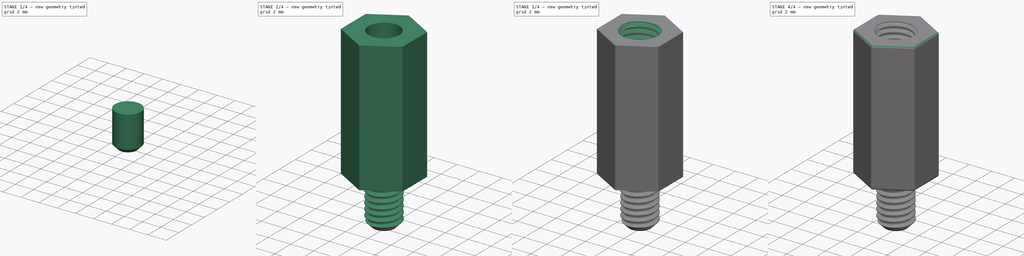
[diagram: build sequence overview — one tinted view per stage of 4, left to right]
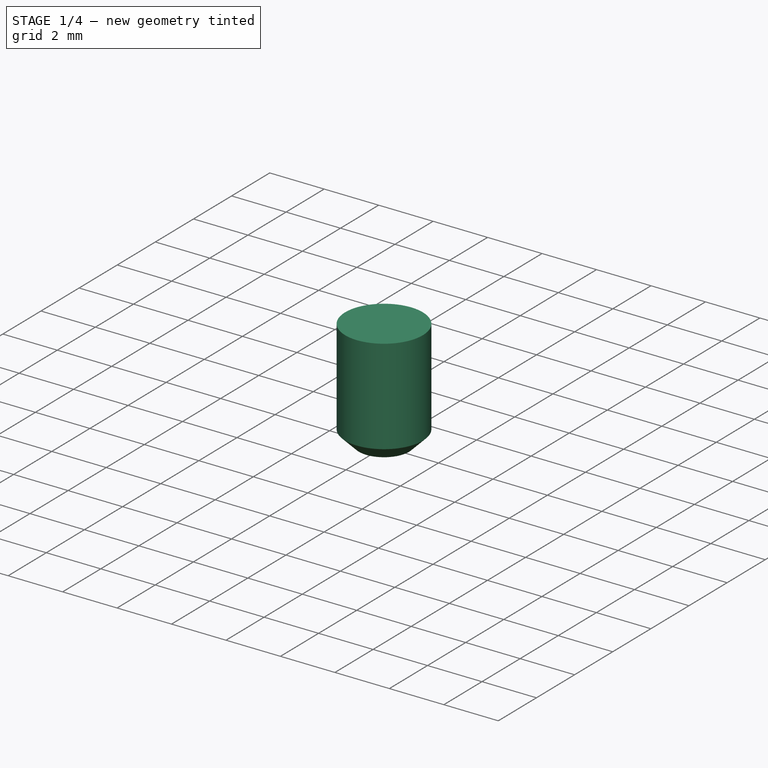
[diagram: stage 1 of 4 — iso view after this stage's code; geometry added in this stage tinted green]
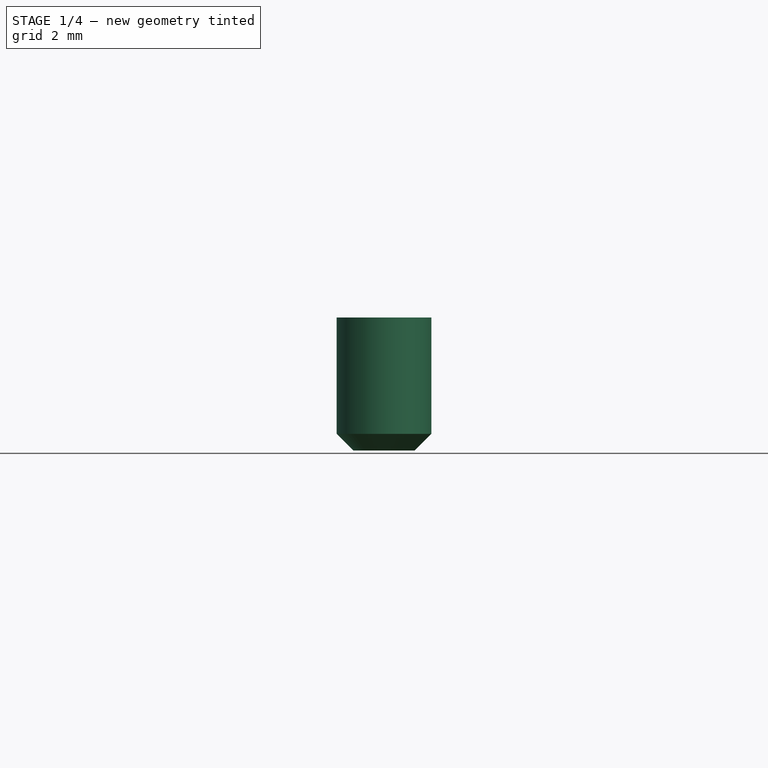
[diagram: stage 1 of 4 — front view after this stage's code; geometry added in this stage tinted green]
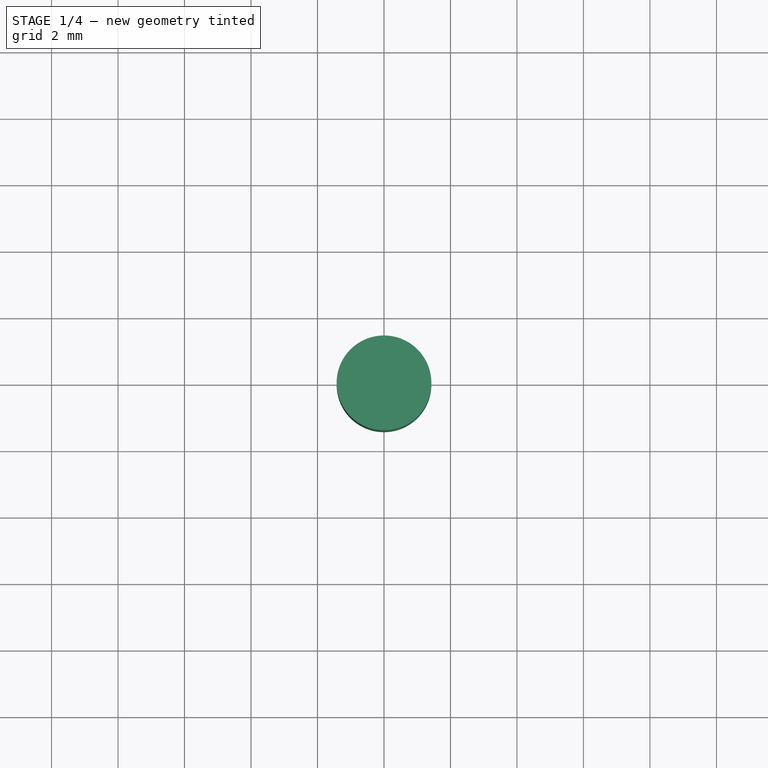
[diagram: stage 1 of 4 — top view after this stage's code; geometry added in this stage tinted green]
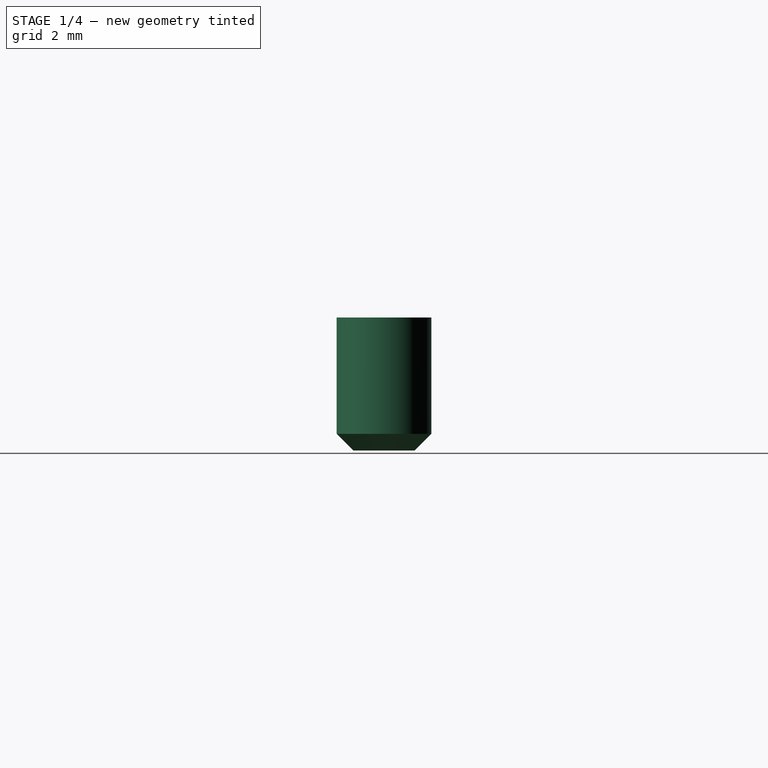
[diagram: stage 1 of 4 — right view after this stage's code; geometry added in this stage tinted green]
FCSTD DOCUMENT  (FreeCAD 1.0R38806 (Git))
Label: PcbSpacer
License: All rights reserved
LicenseURL: http://en.wikipedia.org/wiki/All_rights_reserved
objects: Sketcher::SketchObject×7, PartDesign::Pad×3, PartDesign::Chamfer×2, PartDesign::SubtractiveHelix×2, Spreadsheet::Sheet×1, PartDesign::Pocket×1, PartDesign::Fillet×1, PartDesign::Body×1
note: 42 computed .brp shape members not serialized (recipe doc carries the construction recipe); baked Part::Feature solids carry a one-line shape summary decoded from their .brp

FEATURE [Spreadsheet::Sheet] Spreadsheet
  cells = B2='ShaftDiameter; C2(ShaftDiameter)==2.85 mm; B3='ShaftLength; C3(ShaftLength)==4 mm; B4='HoleDiameter; C4(HoleDiameter)==2.7 mm; B5='SpacerLenght; C5(SpacerLenght)==11.5 mm; B6='SpacerWidth; C6(SpacerWidth)==5.4 mm; B7='SeparatorLength; C7(SeparatorLength)==1 mm; B9='Pitch; C9(Pitch)==0.5 mm
FEATURE [Sketcher::SketchObject] Sketch  label="Template"
  ArcFitTolerance = 1e-06
  AttachmentSupport = -> [XY_Plane]
  FullyConstrained = true
  MakeInternals = false
  MapMode = 5
  expr: Constraints[25] = <<Spreadsheet>>.ShaftDiameter
  expr: Constraints[26] = <<Spreadsheet>>.HoleDiameter
  expr: Constraints[27] = <<Spreadsheet>>.SpacerWidth
  sketch-geometry (10):
    g0: LineSegment StartX=2.7 StartY=-1.55885 StartZ=0 EndX=2.7 EndY=1.55885 EndZ=0
    g1: LineSegment StartX=2.7 StartY=1.55885 StartZ=0 EndX=4e-16 EndY=3.11769 EndZ=0
    g2: LineSegment StartX=5e-16 StartY=3.11769 StartZ=0 EndX=-2.7 EndY=1.55885 EndZ=0
    g3: LineSegment StartX=-2.7 StartY=1.55885 StartZ=0 EndX=-2.7 EndY=-1.55885 EndZ=0
    g4: LineSegment StartX=-2.7 StartY=-1.55885 StartZ=0 EndX=0 EndY=-3.11769 EndZ=0
    g5: LineSegment StartX=-1e-16 StartY=-3.11769 StartZ=0 EndX=2.7 EndY=-1.55885 EndZ=0
    g6: Circle CenterX=0 CenterY=0 CenterZ=0 NormalX=0 NormalY=0 NormalZ=1 AngleXU=0 Radius=3.11769
    g7: Circle CenterX=0 CenterY=0 CenterZ=0 NormalX=0 NormalY=0 NormalZ=1 AngleXU=0 Radius=1.425
    g8: Circle CenterX=0 CenterY=0 CenterZ=0 NormalX=0 NormalY=0 NormalZ=1 AngleXU=0 Radius=1.35
    g9: LineSegment [constr] StartX=-1.425 StartY=2.29497 StartZ=0 EndX=-1.425 EndY=-2.29497 EndZ=0
  constraints (24):
    c: Coincident(g0,g1)
    c: Coincident(g1,g2)
    c: Coincident(g2,g3)
    c: Coincident(g3,g4)
    c: Coincident(g4,g5)
    c: Coincident(g5,g0)
    c: Equal(g0, g1-g5) x5
    c: PointOnObject(g0,g6)
    c: PointOnObject(g1,g6)
    c: PointOnObject(g2,g6)
    c: PointOnObject(g3,g6)
    c: PointOnObject(g4,g6)
    c: PointOnObject(g5,g6)
    c: Coincident(g7,g6)
    c: Coincident(g8,g6)
    c: Vertical(g3)
    c: PointOnObject(g9,g2)
    c: PointOnObject(g9,g4)
    c: Vertical(g9)
    c: Tangent(g9,g7)
    c: Coincident(g6,g-1)
    c: Diameter(g7) = 2.85
    c: Diameter(g8) = 2.7
    c: DistanceX(g2,g0) = 5.4
FEATURE [Sketcher::SketchObject] Sketch001
  ArcFitTolerance = 1e-06
  AttachmentSupport = -> [XY_Plane]
  ExternalGeometry = -> [Sketch]
  FullyConstrained = true
  MakeInternals = false
  MapMode = 5
  sketch-geometry (1):
    g0: Circle CenterX=0 CenterY=0 CenterZ=0 NormalX=0 NormalY=0 NormalZ=1 AngleXU=0 Radius=1.425
  constraints (2):
    c: Coincident(g0,g-3)
    c: Equal(g0,g-3)
FEATURE [PartDesign::Pad] Pad
  Direction = (0,0,1)
  Length = 4
  Length2 = 10
  Profile = -> Sketch001
  ReferenceAxis = -> Sketch001 [N_Axis]
  Suppressed = false
  Type = 0
  expr: Length = <<Spreadsheet>>.ShaftLength
FEATURE [Sketcher::SketchObject] Sketch002
  ArcFitTolerance = 1e-06
  AttachmentOffset = pos=(0,0,4) rot=(0,0,1;0rad)
  AttachmentSupport = -> [XY_Plane]
  ExternalGeometry = -> [Sketch]
  FullyConstrained = true
  MakeInternals = false
  MapMode = 5
  Placement = pos=(0,0,4) rot=(0,0,1;0rad)
  expr: .AttachmentOffset.Base.z = <<Sketch001>>.AttachmentOffset.Base.z + <<Pad>>.Length
  sketch-geometry (7):
    g0: LineSegment StartX=2.7 StartY=-1.55885 StartZ=0 EndX=2.7 EndY=1.55885 EndZ=0
    g1: LineSegment StartX=2.7 StartY=1.55885 StartZ=0 EndX=-4e-16 EndY=3.11769 EndZ=0
    g2: LineSegment StartX=-4e-16 StartY=3.11769 StartZ=0 EndX=-2.7 EndY=1.55885 EndZ=0
    g3: LineSegment StartX=-2.7 StartY=1.55885 StartZ=0 EndX=-2.7 EndY=-1.55885 EndZ=0
    g4: LineSegment StartX=-2.7 StartY=-1.55885 StartZ=0 EndX=4e-16 EndY=-3.11769 EndZ=0
    g5: LineSegment StartX=4e-16 StartY=-3.11769 StartZ=0 EndX=2.7 EndY=-1.55885 EndZ=0
    g6: Circle [constr] CenterX=0 CenterY=0 CenterZ=0 NormalX=0 NormalY=0 NormalZ=1 AngleXU=0 Radius=3.11769
  constraints (15):
    c: Coincident(g0,g1)
    c: Coincident(g1,g2)
    c: Coincident(g2,g3)
    c: Coincident(g3,g4)
    c: Coincident(g4,g5)
    c: Coincident(g5,g0)
    c: Equal(g0, g1-g5) x5
    c: PointOnObject(g0,g6)
    c: PointOnObject(g1,g6)
    c: PointOnObject(g2,g6)
    c: PointOnObject(g3,g6)
    c: PointOnObject(g4,g6)
    c: PointOnObject(g5,g6)
    c: Coincident(g6,g-3)
    c: Coincident(g2,g-4)
FEATURE [Sketcher::SketchObject] Sketch003
  ArcFitTolerance = 1e-06
  AttachmentOffset = pos=(0,0,4) rot=(0,0,1;0rad)
  AttachmentSupport = -> [XY_Plane]
  ExternalGeometry = -> [Sketch]
  FullyConstrained = true
  MakeInternals = false
  MapMode = 5
  Placement = pos=(0,0,4) rot=(0,0,1;0rad)
  expr: .AttachmentOffset.Base.z = <<Sketch001>>.AttachmentOffset.Base.z + <<Pad>>.Length
  sketch-geometry (8):
    g0: LineSegment StartX=2.7 StartY=-1.55885 StartZ=0 EndX=2.7 EndY=1.55885 EndZ=0
    g1: LineSegment StartX=2.7 StartY=1.55885 StartZ=0 EndX=-9e-16 EndY=3.11769 EndZ=0
    g2: LineSegment StartX=-9e-16 StartY=3.11769 StartZ=0 EndX=-2.7 EndY=1.55885 EndZ=0
    g3: LineSegment StartX=-2.7 StartY=1.55885 StartZ=0 EndX=-2.7 EndY=-1.55885 EndZ=0
    g4: LineSegment StartX=-2.7 StartY=-1.55885 StartZ=0 EndX=9e-16 EndY=-3.11769 EndZ=0
    g5: LineSegment StartX=9e-16 StartY=-3.11769 StartZ=0 EndX=2.7 EndY=-1.55885 EndZ=0
    g6: Circle [constr] CenterX=0 CenterY=0 CenterZ=0 NormalX=0 NormalY=0 NormalZ=1 AngleXU=0 Radius=3.11769
    g7: Circle CenterX=0 CenterY=0 CenterZ=0 NormalX=0 NormalY=0 NormalZ=1 AngleXU=0 Radius=1.35
  constraints (17):
    c: Coincident(g0,g1)
    c: Coincident(g1,g2)
    c: Coincident(g2,g3)
    c: Coincident(g3,g4)
    c: Coincident(g4,g5)
    c: Coincident(g5,g0)
    c: Equal(g0, g1-g5) x5
    c: PointOnObject(g0,g6)
    c: PointOnObject(g1,g6)
    c: PointOnObject(g2,g6)
    c: PointOnObject(g3,g6)
    c: PointOnObject(g4,g6)
    c: PointOnObject(g5,g6)
    c: Coincident(g6,g-3)
    c: Coincident(g2,g-5)
    c: Coincident(g7,g-4)
    c: Equal(g7,g-3)
FEATURE [Sketcher::SketchObject] Sketch004
  ArcFitTolerance = 1e-06
  AttachmentSupport = -> [XZ_Plane]
  ExternalGeometry = -> [Sketch]
  FullyConstrained = true
  MakeInternals = false
  MapMode = 5
  Placement = pos=(0,0,0) rot=(1,0,0;1.5708rad)
  expr: Constraints[14] = <<Spreadsheet>>.Pitch * 0.866
  expr: Constraints[18] = <<Spreadsheet>>.Pitch / 8
  expr: Constraints[9] = <<Spreadsheet>>.Pitch / 4
  sketch-geometry (10):
    g0: LineSegment [constr] StartX=1.04613 StartY=-0.218743 StartZ=0 EndX=1.47913 EndY=0.03125 EndZ=0
    g1: LineSegment [constr] StartX=1.47913 StartY=0.03125 StartZ=0 EndX=1.47913 EndY=-0.468735 EndZ=0
    g2: LineSegment [constr] StartX=1.47913 StartY=-0.468735 StartZ=0 EndX=1.04613 EndY=-0.218743 EndZ=0
    g3: LineSegment StartX=1.15438 StartY=-0.156243 StartZ=0 EndX=1.15438 EndY=-0.281243 EndZ=0
    g4: LineSegment [constr] StartX=1.47913 StartY=0.03125 StartZ=0 EndX=1.04613 EndY=0.281243 EndZ=0
    g5: LineSegment [constr] StartX=1.04613 StartY=0.281243 StartZ=0 EndX=1.04613 EndY=-0.218743 EndZ=0
    g6: LineSegment [constr] StartX=1.425 StartY=0.0625 StartZ=0 EndX=1.425 EndY=0 EndZ=0
    g7: LineSegment StartX=1.15438 StartY=-0.156243 StartZ=0 EndX=1.47913 EndY=0.03125 EndZ=0
    g8: LineSegment StartX=1.15438 StartY=-0.281243 StartZ=0 EndX=1.47913 EndY=-0.468735 EndZ=0
    g9: LineSegment StartX=1.47913 StartY=-0.468735 StartZ=0 EndX=1.47913 EndY=0.03125 EndZ=0
  constraints (28):
    c: Coincident(g0,g1)
    c: Vertical(g1)
    c: Coincident(g1,g2)
    c: Coincident(g2,g0)
    c: Equal(g0,g1)
    c: Equal(g1,g2)
    c: PointOnObject(g3,g0)
    c: PointOnObject(g3,g2)
    c: Vertical(g3)
    c: DistanceY(g3,g3) = 0.125
    c: Coincident(g0,g4)
    c: Coincident(g4,g5)
    c: Coincident(g5,g0)
    c: Vertical(g5)
    c: DistanceX(g4,g0) = 0.433
    c: Equal(g0,g5)
    c: PointOnObject(g6,g4)
    c: PointOnObject(g6,g0)
    c: DistanceY(g6,g6) = 0.0625
    c: Coincident(g7,g3)
    c: Coincident(g8,g3)
    c: PointOnObject(g8,g2)
    c: PointOnObject(g9,g1)
    c: Vertical(g6)
    c: Coincident(g7,g0)
    c: Coincident(g7,g9)
    c: Coincident(g8,g9)
    c: Coincident(g6,g-3)
FEATURE [PartDesign::Chamfer] Chamfer
  Angle = 45
  Base = -> Pad [Edge2]
  BaseFeature = -> Pad
  ChamferType = 0
  FlipDirection = false
  Size = 0.5
  Size2 = 1
  SupportTransform = false
  Suppressed = false
  UseAllEdges = false
  expr: Size = <<Spreadsheet>>.Pitch
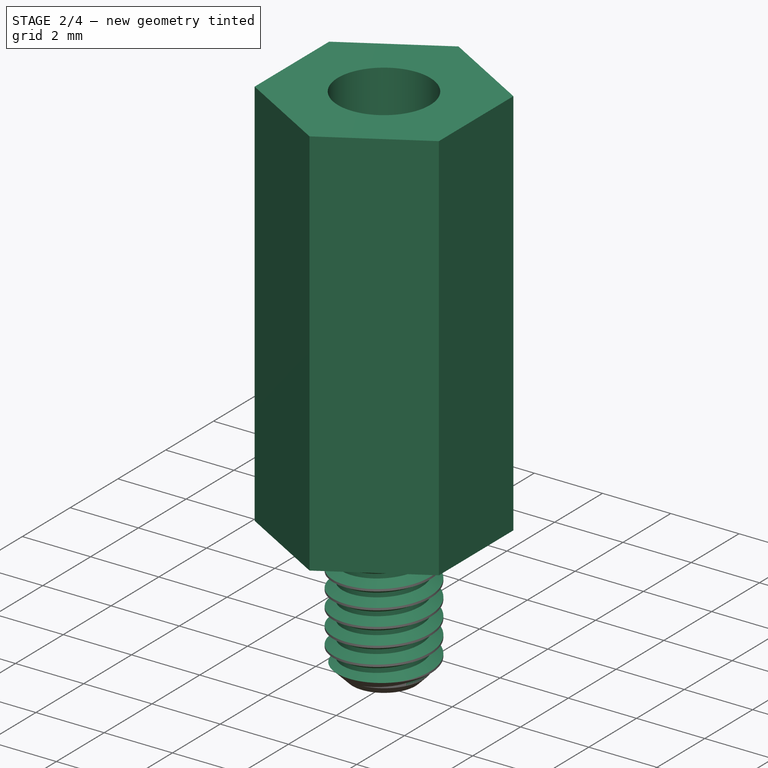
[diagram: stage 2 of 4 — iso view after this stage's code; geometry added in this stage tinted green]
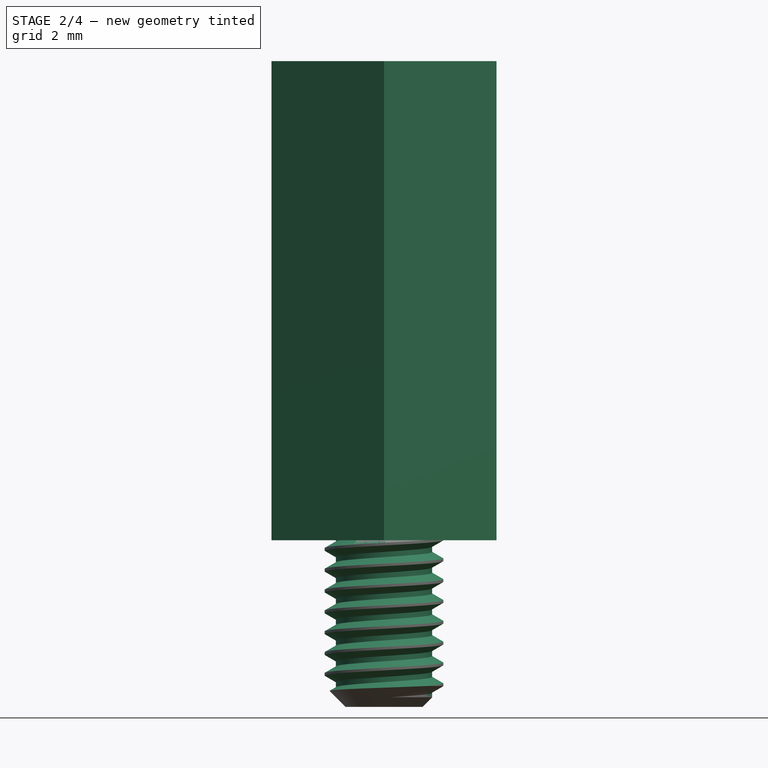
[diagram: stage 2 of 4 — front view after this stage's code; geometry added in this stage tinted green]
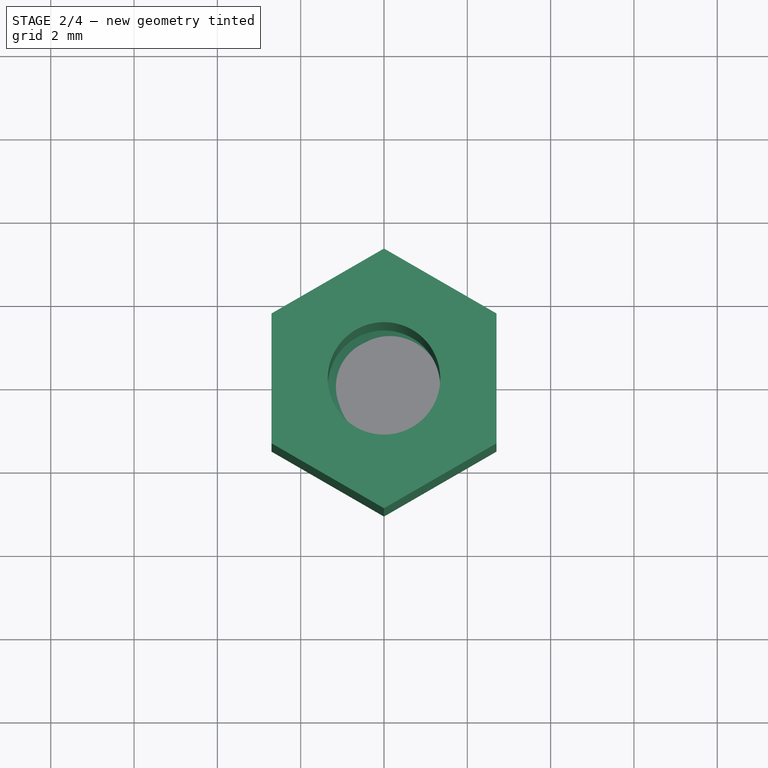
[diagram: stage 2 of 4 — top view after this stage's code; geometry added in this stage tinted green]
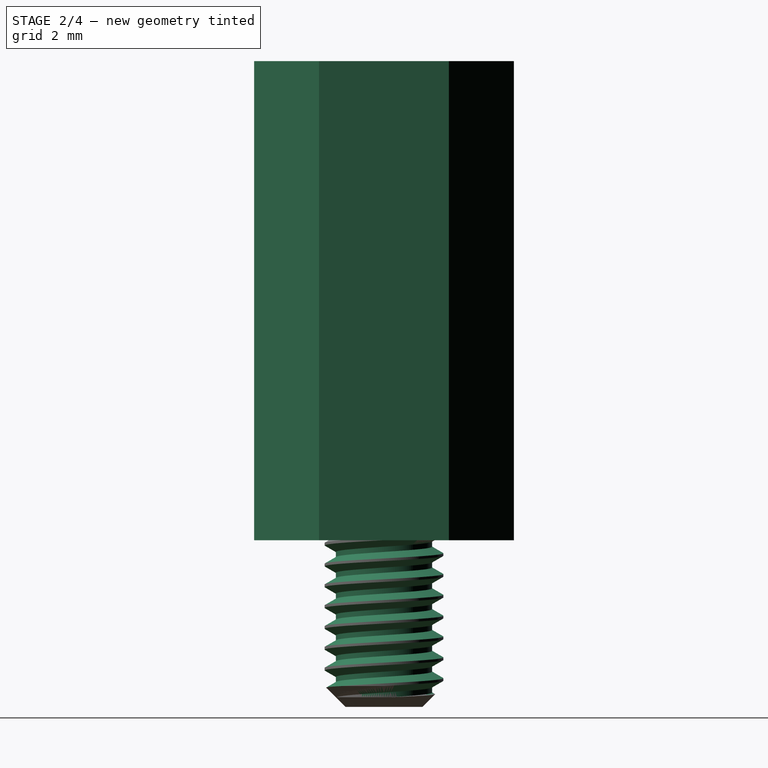
[diagram: stage 2 of 4 — right view after this stage's code; geometry added in this stage tinted green]
FEATURE [PartDesign::SubtractiveHelix] SubtractiveHelix
  Angle = 0
  Axis = (0,2e-16,1)
  Base = (0,0,0)
  BaseFeature = -> Chamfer
  Growth = 0
  HasBeenEdited = true
  Height = 4.5
  LeftHanded = false
  Mode = 0
  Outside = false
  Pitch = 0.5
  Profile = -> Sketch004
  ReferenceAxis = -> Sketch004 [V_Axis]
  Suppressed = false
  Turns = 9
  expr: Height = <<Pad>>.Length + <<Spreadsheet>>.Pitch
FEATURE [PartDesign::Pad] Pad002
  BaseFeature = -> SubtractiveHelix
  Direction = (0,0,1)
  Length = 11.5
  Length2 = 10
  Profile = -> Sketch003
  ReferenceAxis = -> Sketch003 [N_Axis]
  Refine = true
  Suppressed = false
  Type = 0
  expr: Length = <<Spreadsheet>>.SpacerLenght
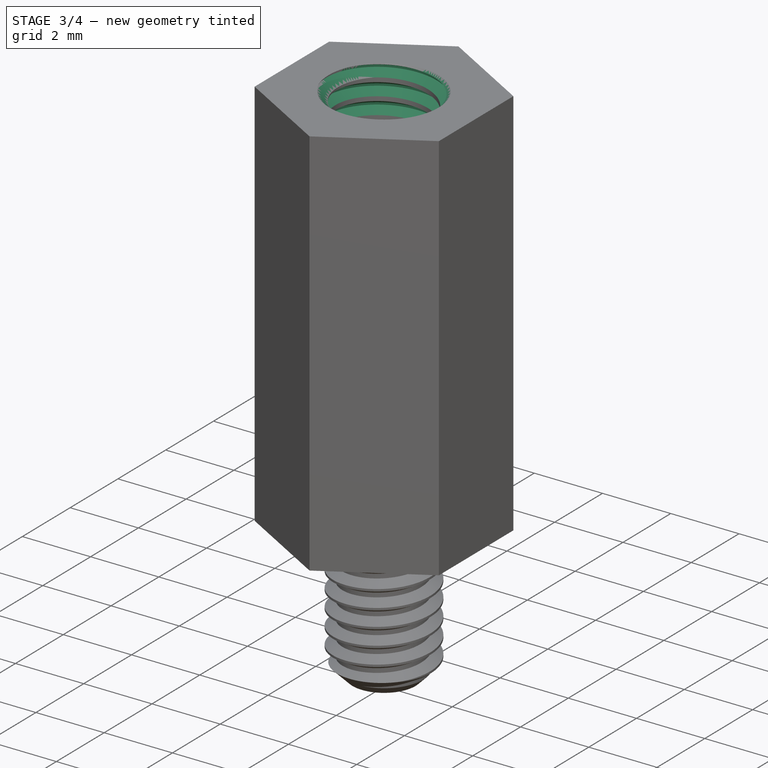
[diagram: stage 3 of 4 — iso view after this stage's code; geometry added in this stage tinted green]
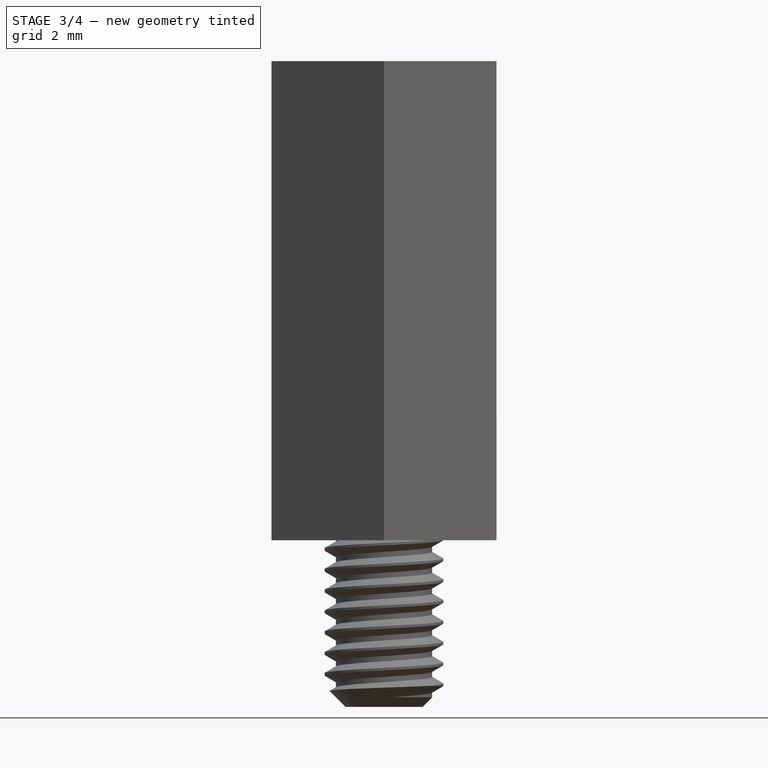
[diagram: stage 3 of 4 — front view after this stage's code; geometry added in this stage tinted green]
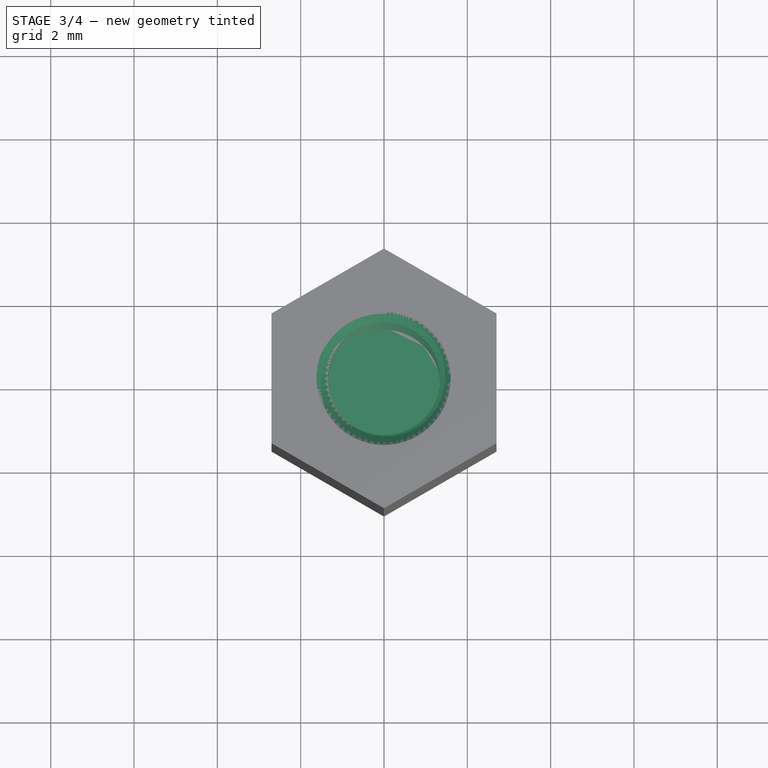
[diagram: stage 3 of 4 — top view after this stage's code; geometry added in this stage tinted green]
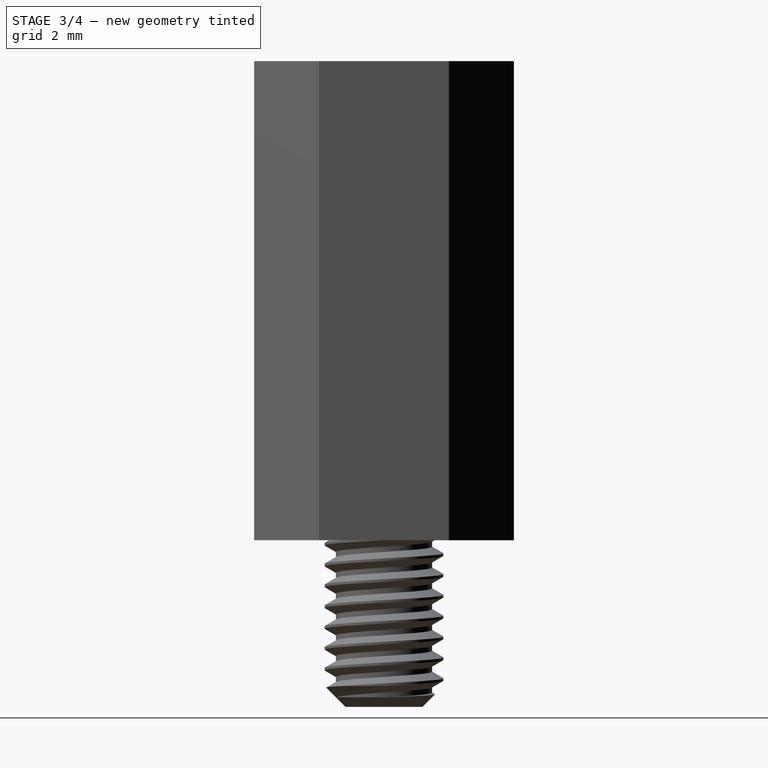
[diagram: stage 3 of 4 — right view after this stage's code; geometry added in this stage tinted green]
FEATURE [Sketcher::SketchObject] Sketch005
  ArcFitTolerance = 1e-06
  AttachmentOffset = pos=(0,4,0) rot=(0,0,1;0rad)
  AttachmentSupport = -> [XZ_Plane]
  ExternalGeometry = -> [Sketch003]
  FullyConstrained = true
  MakeInternals = false
  MapMode = 5
  Placement = pos=(0,9e-16,4) rot=(1,0,0;1.5708rad)
  expr: .AttachmentOffset.Base.y = Pad.Length
  expr: Constraints[14] = <<Spreadsheet>>.Pitch * 0.866
  expr: Constraints[18] = <<Spreadsheet>>.Pitch / 8
  expr: Constraints[9] = <<Spreadsheet>>.Pitch / 4
  sketch-geometry (10):
    g0: LineSegment [constr] StartX=1.24175 StartY=0 StartZ=0 EndX=1.67475 EndY=0.249993 EndZ=0
    g1: LineSegment [constr] StartX=1.67475 StartY=0.249993 StartZ=0 EndX=1.67475 EndY=-0.249993 EndZ=0
    g2: LineSegment [constr] StartX=1.67475 StartY=-0.249993 StartZ=0 EndX=1.24175 EndY=0 EndZ=0
    g3: LineSegment [constr] StartX=1.35 StartY=0.0625 StartZ=0 EndX=1.35 EndY=-0.0625 EndZ=0
    g4: LineSegment [constr] StartX=1.67475 StartY=0.249993 StartZ=0 EndX=1.24175 EndY=0.499985 EndZ=0
    g5: LineSegment [constr] StartX=1.24175 StartY=0.499985 StartZ=0 EndX=1.24175 EndY=0 EndZ=0
    g6: LineSegment StartX=1.62062 StartY=0.281243 StartZ=0 EndX=1.62062 EndY=0.218743 EndZ=0
    g7: LineSegment StartX=1.62062 StartY=0.281243 StartZ=0 EndX=1.24175 EndY=0.499985 EndZ=0
    g8: LineSegment StartX=1.24175 StartY=0.499985 StartZ=0 EndX=1.24175 EndY=0 EndZ=0
    g9: LineSegment StartX=1.24175 StartY=0 StartZ=0 EndX=1.62062 EndY=0.218743 EndZ=0
  constraints (28):
    c: Coincident(g0,g1)
    c: Vertical(g1)
    c: Coincident(g1,g2)
    c: Coincident(g2,g0)
    c: Equal(g0,g1)
    c: Equal(g1,g2)
    c: PointOnObject(g3,g0)
    c: PointOnObject(g3,g2)
    c: Vertical(g3)
    c: DistanceY(g3,g3) = 0.125
    c: Coincident(g0,g4)
    c: Coincident(g4,g5)
    c: Coincident(g5,g0)
    c: Vertical(g5)
    c: DistanceX(g4,g0) = 0.433
    c: Equal(g0,g5)
    c: PointOnObject(g6,g4)
    c: PointOnObject(g6,g0)
    c: DistanceY(g6,g6) = 0.0625
    c: Vertical(g6)
    c: Coincident(g6,g7)
    c: Coincident(g7,g4)
    c: Coincident(g7,g8)
    c: Coincident(g8,g0)
    c: Coincident(g8,g9)
    c: Coincident(g9,g6)
    c: PointOnObject(g0,g-3)
    c: PointOnObject(g-3,g3)
FEATURE [PartDesign::Chamfer] Chamfer001
  Angle = 45
  Base = -> Pad002 [Edge90]
  BaseFeature = -> Pad002
  ChamferType = 0
  FlipDirection = false
  Size = 0.25
  Size2 = 1
  SupportTransform = false
  Suppressed = false
  UseAllEdges = false
  expr: Size = <<Spreadsheet>>.Pitch / 2
FEATURE [PartDesign::SubtractiveHelix] SubtractiveHelix001
  Angle = 0
  Axis = (0,2e-16,1)
  Base = (0,9e-16,4)
  BaseFeature = -> Chamfer001
  Growth = 0
  HasBeenEdited = true
  Height = 11.5
  LeftHanded = false
  Mode = 0
  Outside = false
  Pitch = 0.5
  Profile = -> Sketch005
  ReferenceAxis = -> Sketch005 [V_Axis]
  Suppressed = false
  Turns = 23
  expr: Height = <<Pad002>>.Length
FEATURE [PartDesign::Pad] Pad003
  BaseFeature = -> SubtractiveHelix001
  Direction = (0,0,1)
  Length = 1
  Length2 = 10
  Profile = -> Sketch002
  ReferenceAxis = -> Sketch002 [N_Axis]
  Refine = true
  Suppressed = false
  Type = 0
  expr: Length = <<Spreadsheet>>.SeparatorLength
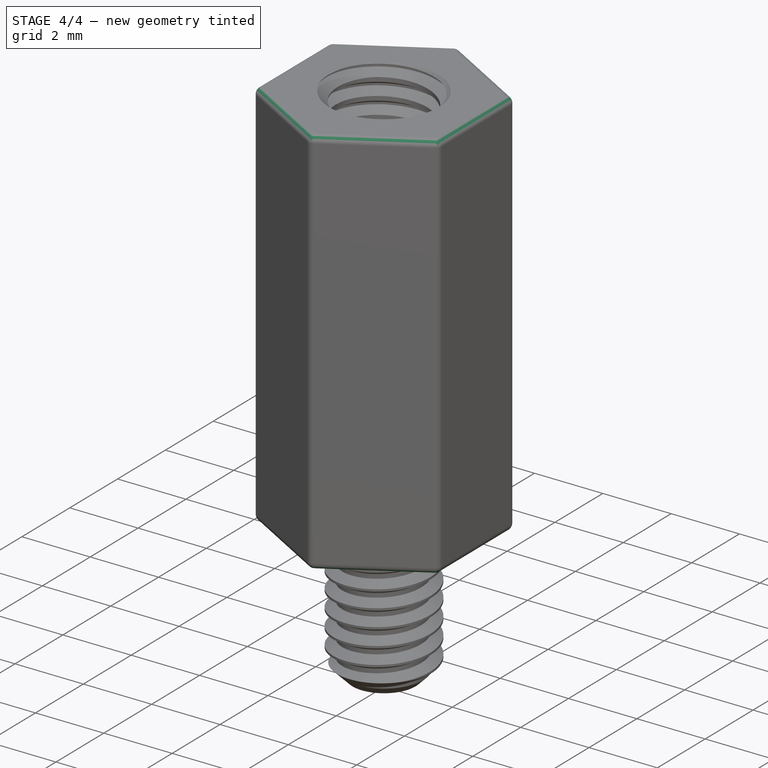
[diagram: stage 4 of 4 — iso view after this stage's code; geometry added in this stage tinted green]
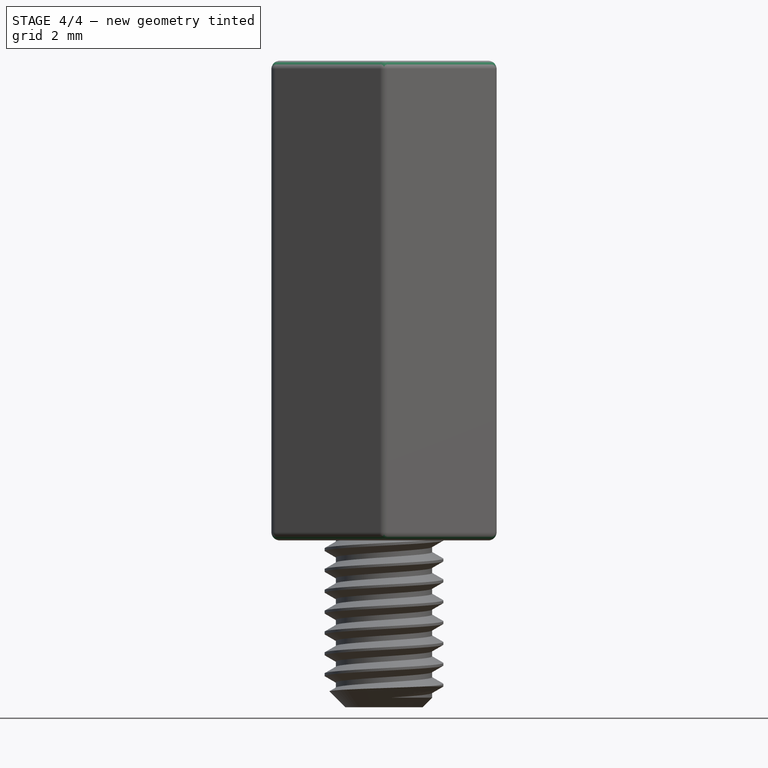
[diagram: stage 4 of 4 — front view after this stage's code; geometry added in this stage tinted green]
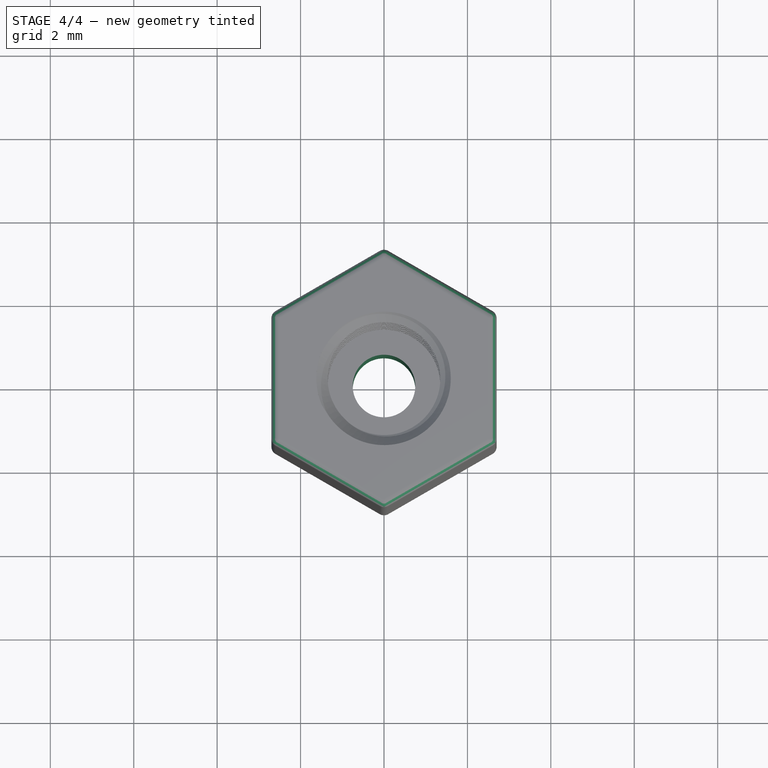
[diagram: stage 4 of 4 — top view after this stage's code; geometry added in this stage tinted green]
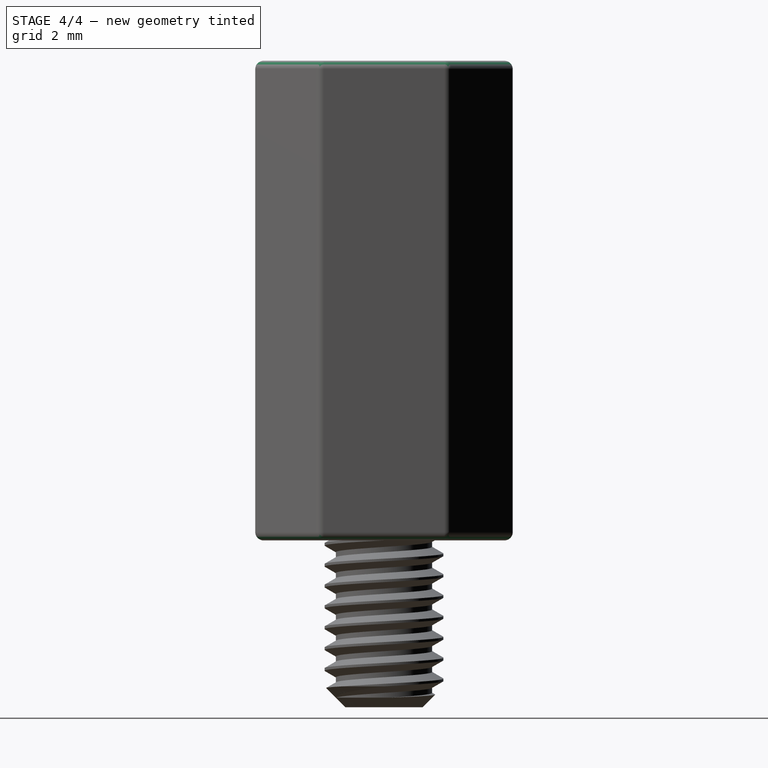
[diagram: stage 4 of 4 — right view after this stage's code; geometry added in this stage tinted green]
FEATURE [Sketcher::SketchObject] Sketch006
  ArcFitTolerance = 1e-06
  AttachmentSupport = -> [XY_Plane]
  FullyConstrained = true
  MakeInternals = false
  MapMode = 5
  sketch-geometry (1):
    g0: Circle CenterX=0 CenterY=0 CenterZ=0 NormalX=0 NormalY=0 NormalZ=1 AngleXU=0 Radius=0.75
  constraints (2):
    c: Coincident(g0,g-1)
    c: Diameter(g0) = 1.5
FEATURE [PartDesign::Pocket] Pocket
  BaseFeature = -> Pad003
  Direction = (0,0,-1)
  Length = 5
  Length2 = 5
  Profile = -> Sketch006
  ReferenceAxis = -> Sketch006 [N_Axis]
  Reversed = true
  Suppressed = false
  Type = 1
FEATURE [PartDesign::Fillet] Fillet
  Base = -> Pocket [Face24,Face25,Face20,Face21,Face22,Face23]
  BaseFeature = -> Pocket
  Radius = 0.2
  SupportTransform = false
  Suppressed = false
  UseAllEdges = false
FEATURE [PartDesign::Body] Body
  AllowCompound = false
  Group = -> [Sketch,Sketch001,Pad,Sketch004,Chamfer,SubtractiveHelix,Sketch003,Pad002,Sketch005,Chamfer001,SubtractiveHelix001,Sketch002,Pad003,Sketch006,Pocket,Fillet]
  Origin = -> Origin
  Tip = -> Fillet
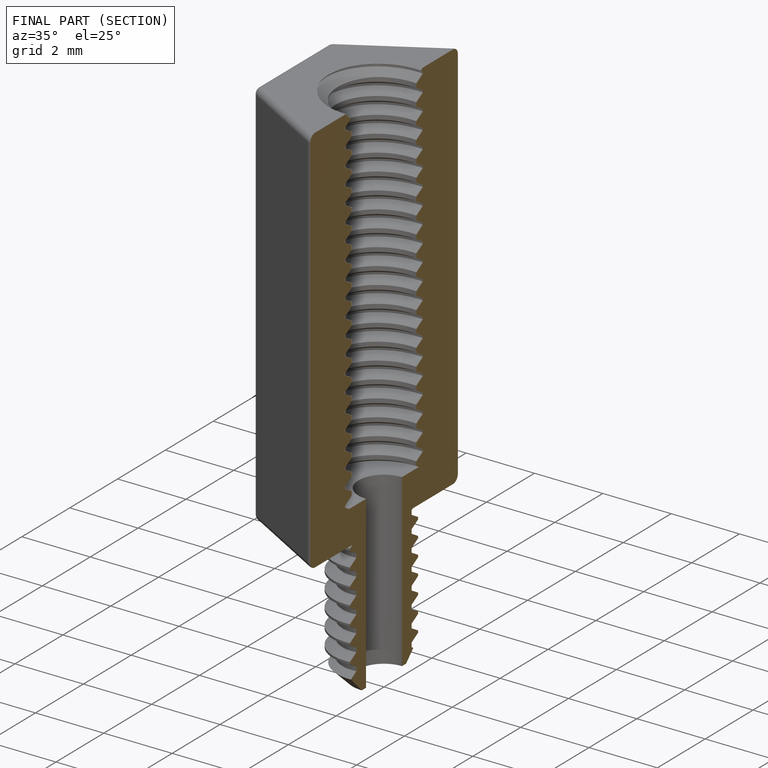
[diagram: finished part — half-section view (interior)]
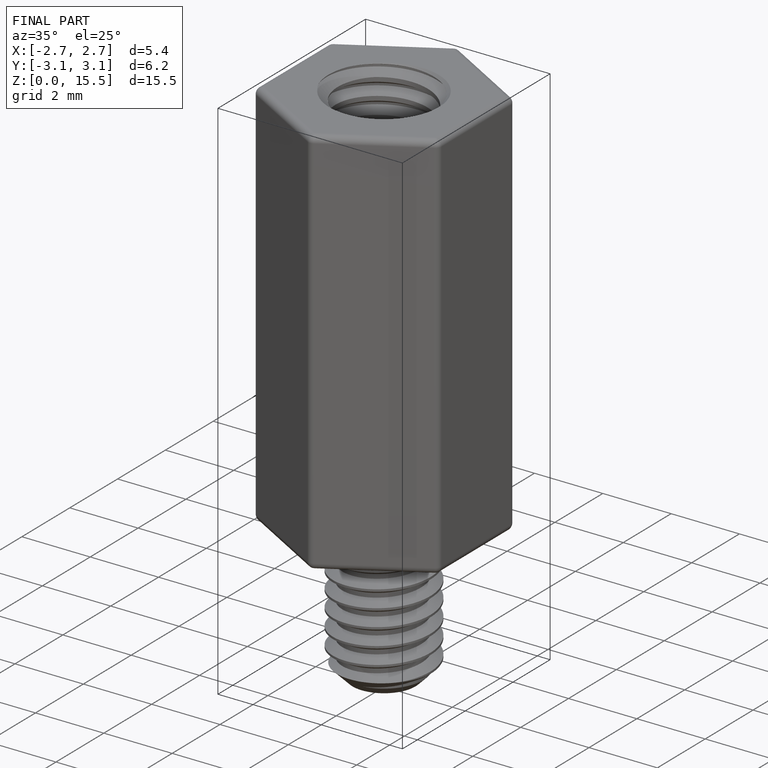
[diagram: finished part — iso view with bounding-box wireframe]
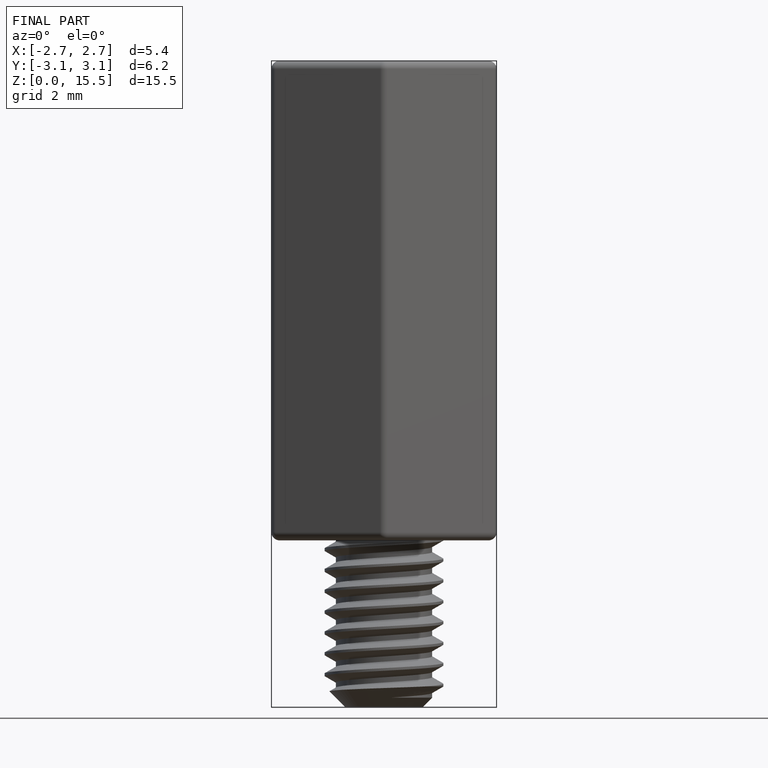
[diagram: finished part — front view with bounding-box wireframe]
